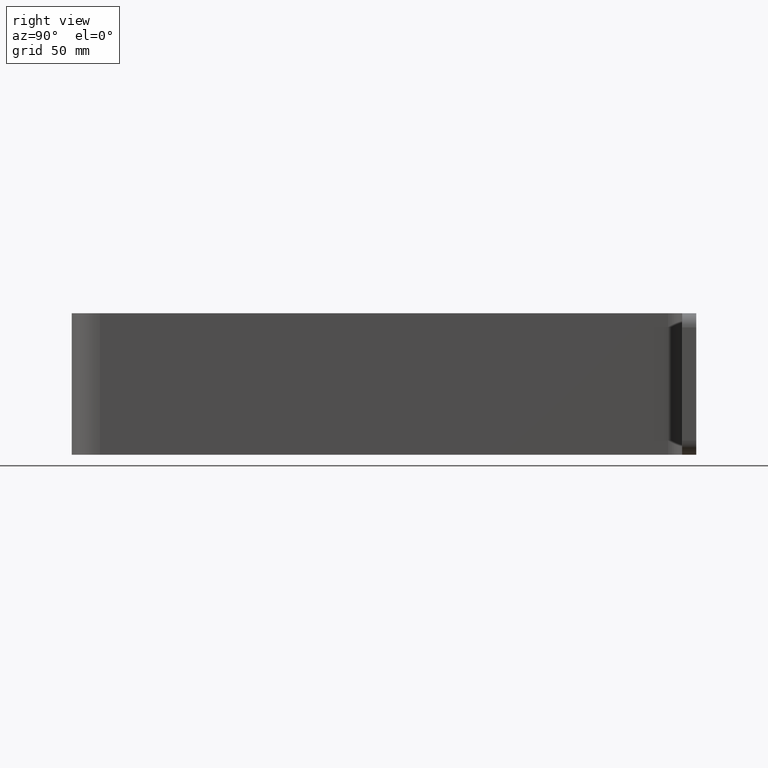
[diagram: clean part render]
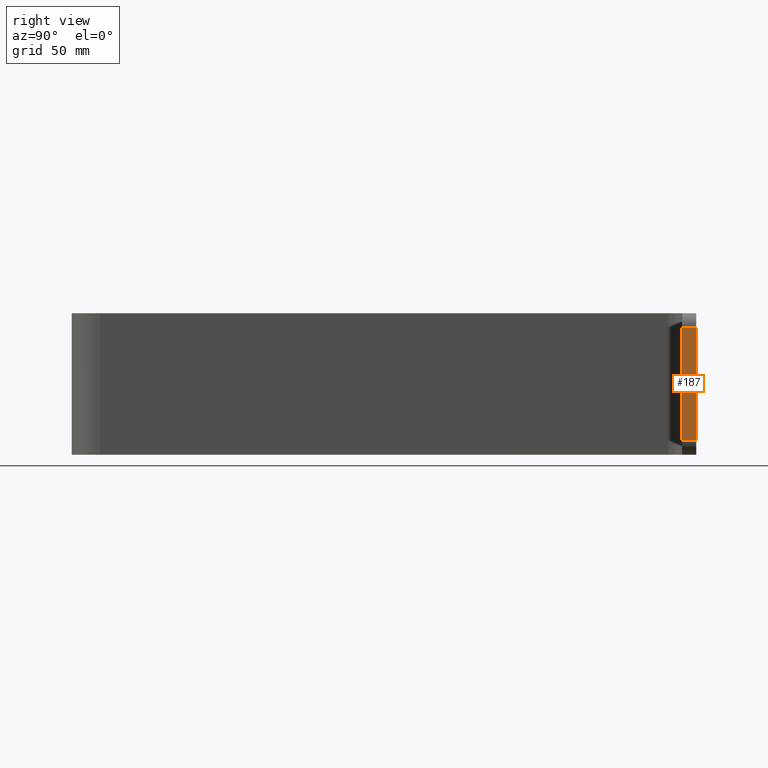
[diagram: same view with one face highlighted and labeled with its STEP entity id]
A machine part, right view. The second image highlights one B-rep face of the part: STEP entity #187.
In plain terms, the highlighted planar face has unit normal (1, 0, 0).
Its self-contained STEP definition (entity closure, byte-faithful):
#187=ADVANCED_FACE('Pad.4',(#491),#492,.T.);
#279=EDGE_CURVE('Pad.4',#632,#629,#633,.T.);
#321=EDGE_CURVE('Pad.4',#687,#688,#689,.T.);
#349=EDGE_CURVE('EdgeFillet.4',#632,#687,#723,.F.);
#351=EDGE_CURVE('EdgeFillet.4',#629,#688,#725,.F.);
#491=FACE_OUTER_BOUND('',#875,.T.);
#492=PLANE('',#876);
#629=VERTEX_POINT('',#1048);
#632=VERTEX_POINT('',#1052);
#633=LINE('',#1053,#1054);
#687=VERTEX_POINT('',#1140);
#688=VERTEX_POINT('',#1141);
#689=LINE('',#1142,#1143);
#723=LINE('',#1198,#1199);
#725=LINE('',#1202,#1203);
#875=EDGE_LOOP('',(#1505,#1506,#1507,#1508));
#876=AXIS2_PLACEMENT_3D('',#1509,#1510,#1511);
#1048=CARTESIAN_POINT('',(89.9999999999995,265.0,54.0));
#1052=CARTESIAN_POINT('',(89.9999999999995,265.0,6.0));
#1053=CARTESIAN_POINT('',(89.9999999999995,265.0,30.0));
#1054=VECTOR('',#1762,1.0);
#1140=CARTESIAN_POINT('',(90.0,259.0,6.0));
#1141=CARTESIAN_POINT('',(90.0,259.0,54.0));
#1142=CARTESIAN_POINT('',(90.0,259.0,30.0));
#1143=VECTOR('',#1801,1.0);
#1198=CARTESIAN_POINT('',(90.0,262.0,6.0));
#1199=VECTOR('',#1827,1.0);
#1202=CARTESIAN_POINT('',(90.0,262.0,54.0));
#1203=VECTOR('',#1828,1.0);
#1505=ORIENTED_EDGE('',*,*,#351,.T.);
#1506=ORIENTED_EDGE('',*,*,#321,.F.);
#1507=ORIENTED_EDGE('',*,*,#349,.F.);
#1508=ORIENTED_EDGE('',*,*,#279,.T.);
#1509=CARTESIAN_POINT('',(90.0,259.0,0.0));
#1510=DIRECTION('',(1.0,0.0,0.0));
#1511=DIRECTION('',(0.0,1.0,-0.0));
#1762=DIRECTION('',(0.0,0.0,1.0));
#1801=DIRECTION('',(0.0,0.0,1.0));
#1827=DIRECTION('',(0.0,1.0,0.0));
#1828=DIRECTION('',(0.0,1.0,0.0));